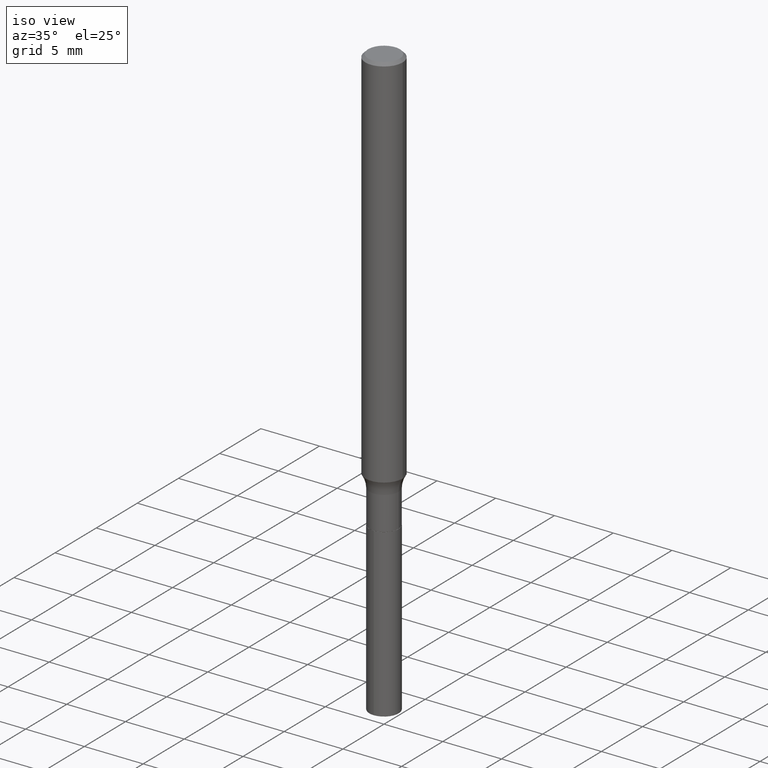
[diagram: clean part render]
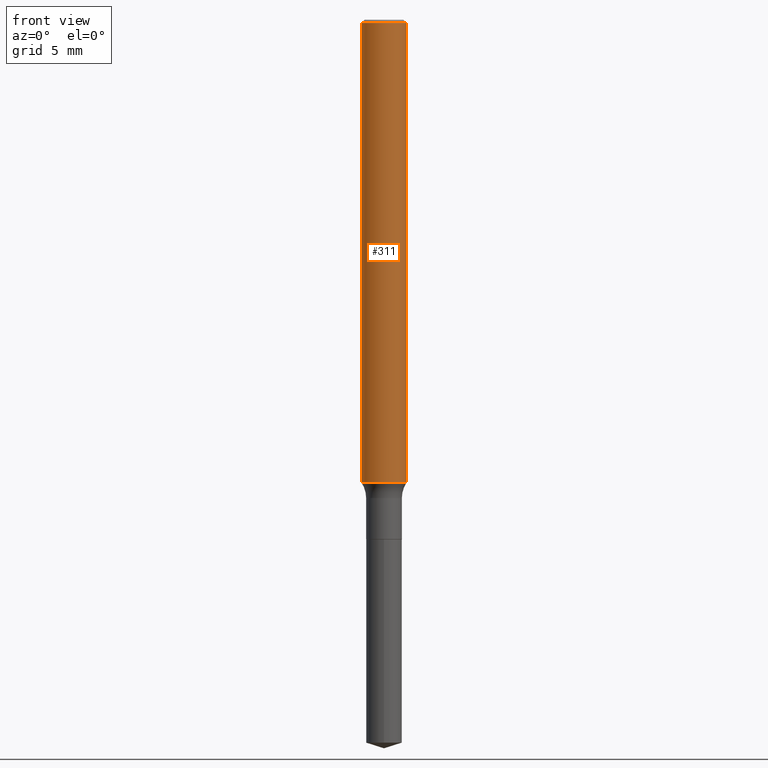
[diagram: tour spotlight — one face highlighted and labeled with its STEP entity id]
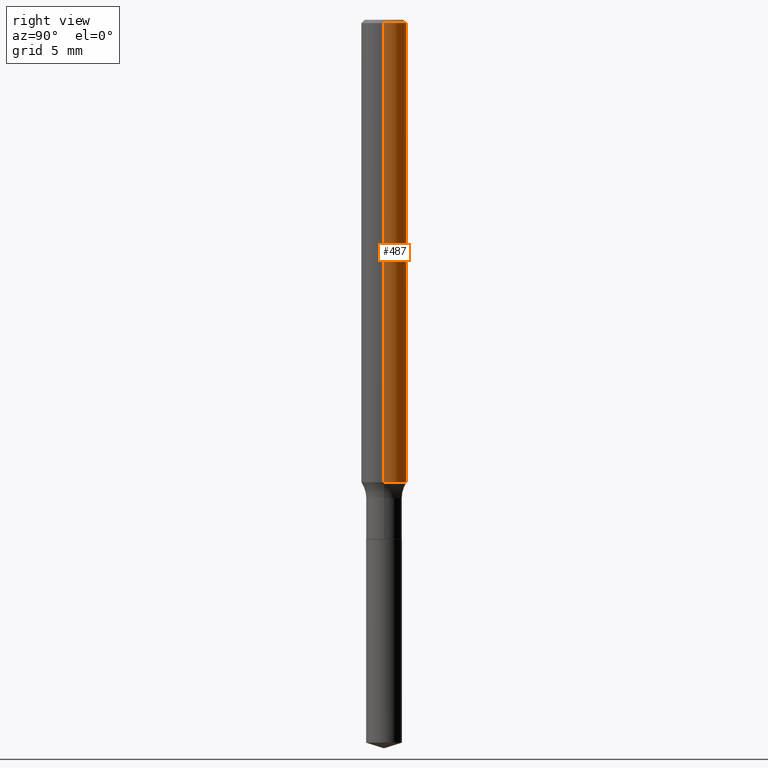
[diagram: tour spotlight — one face highlighted and labeled with its STEP entity id]
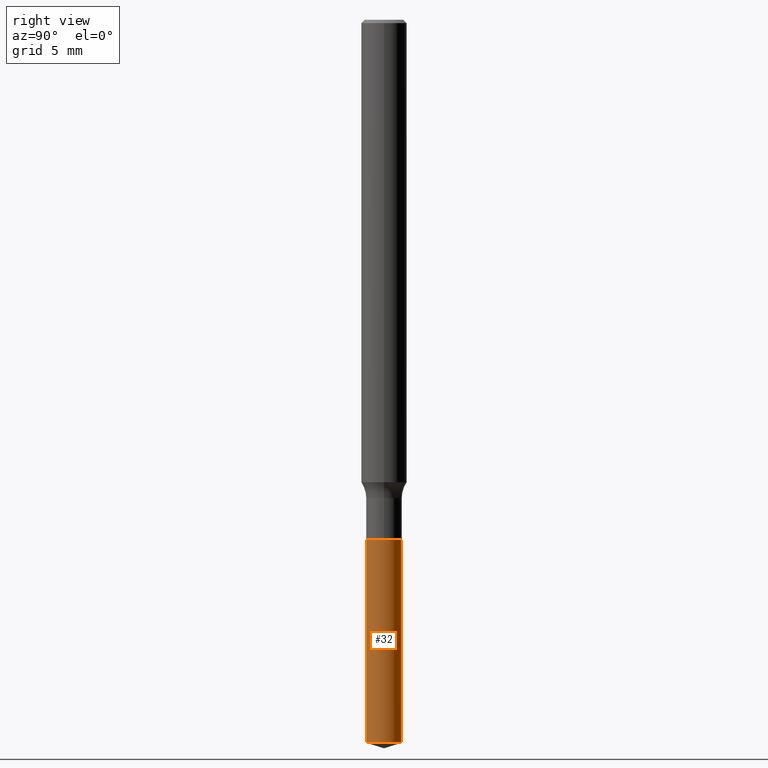
[diagram: tour spotlight — one face highlighted and labeled with its STEP entity id]
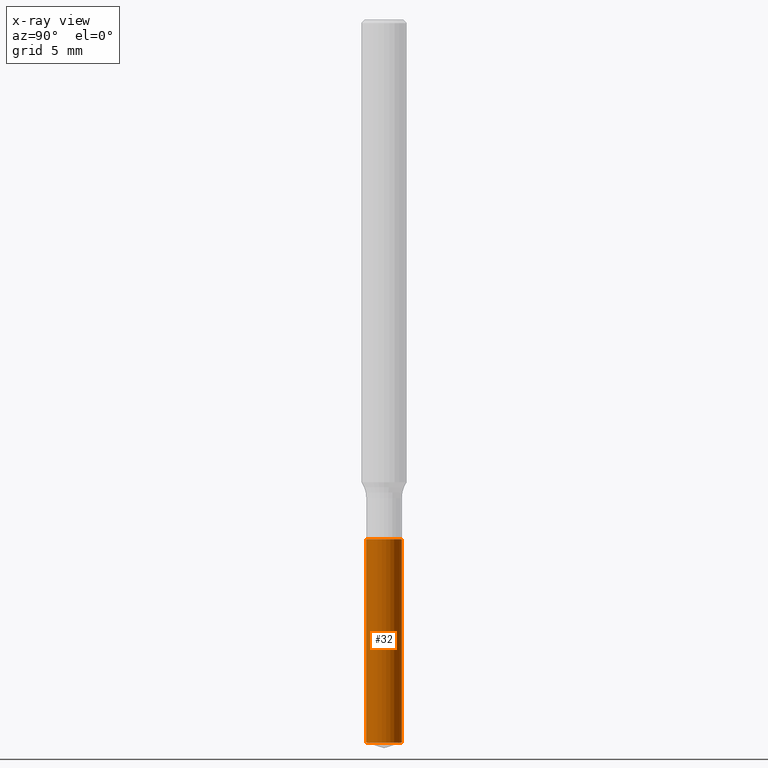
[diagram: x-ray of the same camera — body ghosted, this tour face saturated]
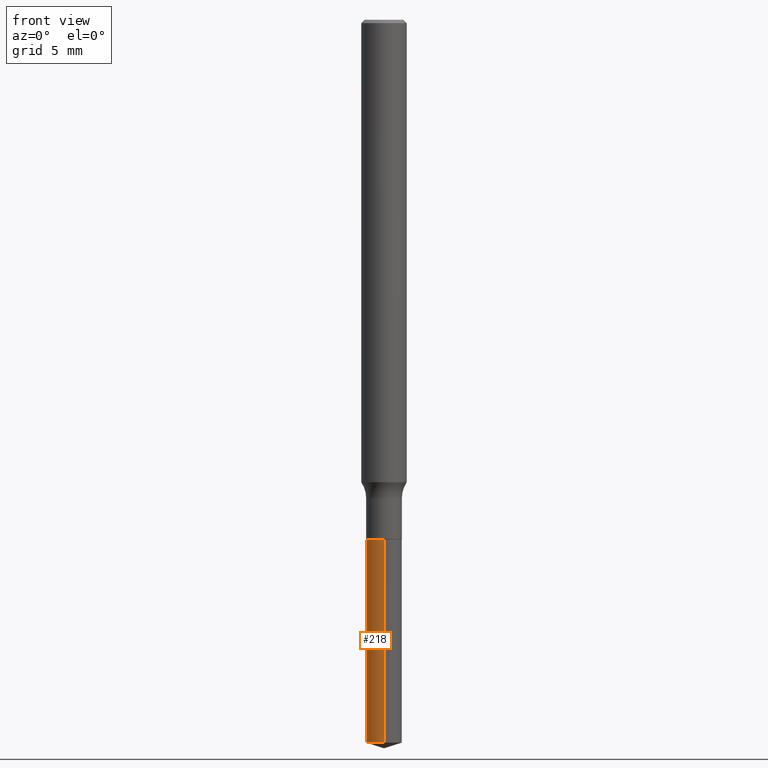
[diagram: tour spotlight — one face highlighted and labeled with its STEP entity id]
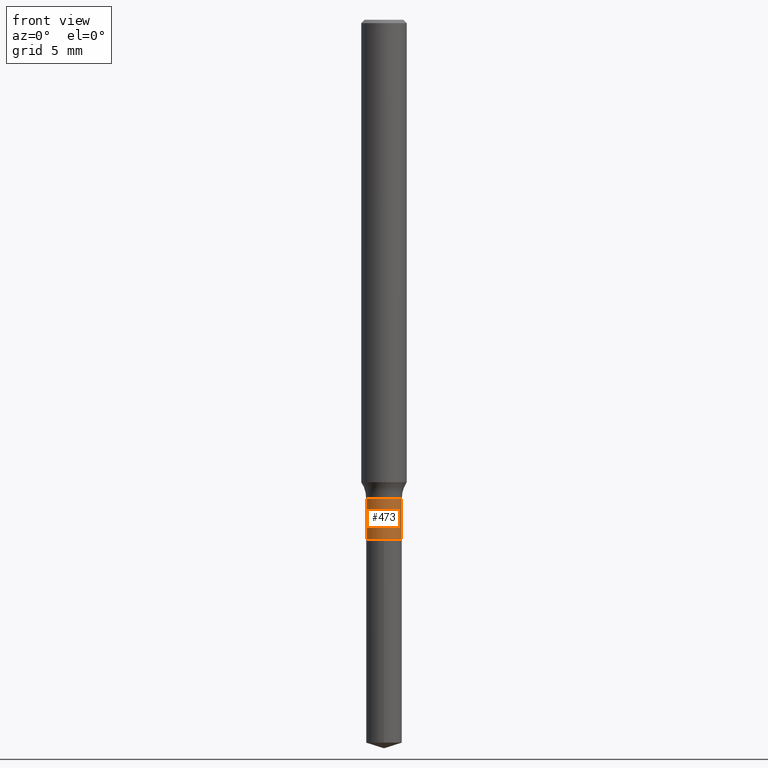
[diagram: tour spotlight — one face highlighted and labeled with its STEP entity id]
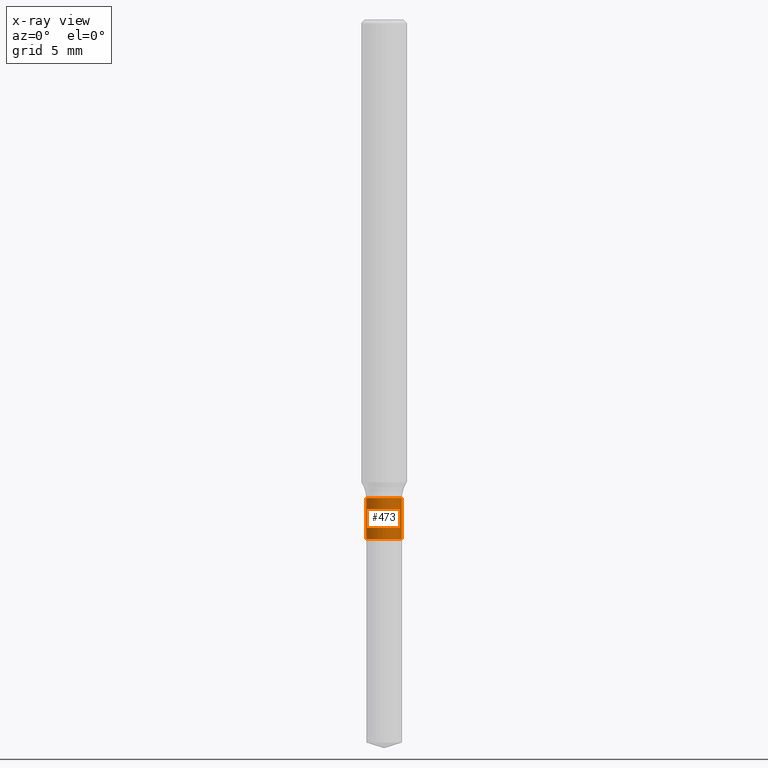
[diagram: x-ray of the same camera — body ghosted, this tour face saturated]
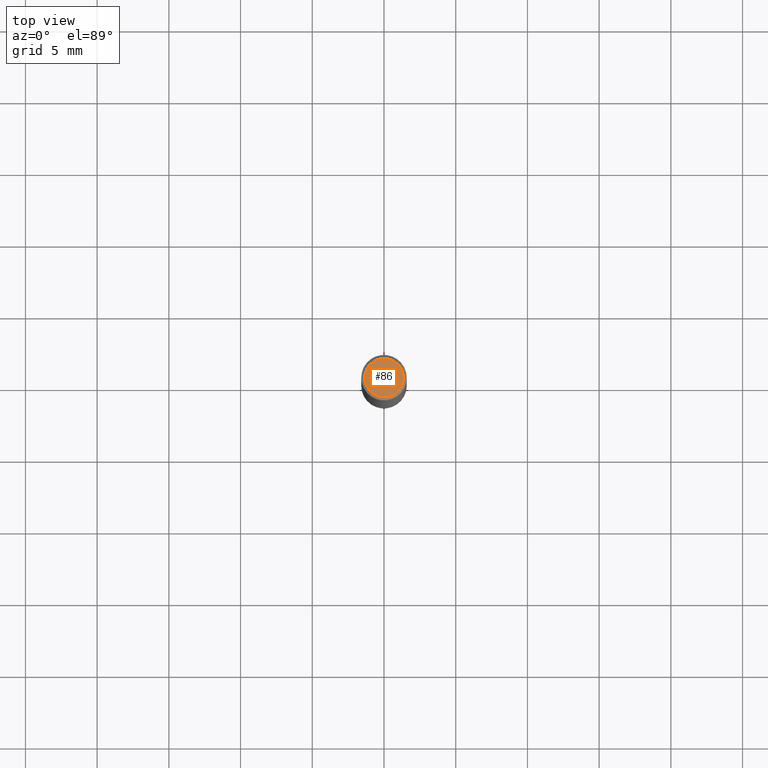
[diagram: tour spotlight — one face highlighted and labeled with its STEP entity id]
A machine part: a face-by-face anatomy tour. The part has 17 B-rep faces; the first image is the clean iso view, then the 6 largest visible faces are spotlighted one at a time (largest first), each with its STEP entity span.

Face 1 — front view, entity #311. In plain terms, the highlighted cylindrical surface (edge-blend (fillet) strip) has radius 1.5875 mm, axis along (-0, 0, 1).
Definition (entity closure, byte-faithful):
#24 = AXIS2_PLACEMENT_3D ( 'NONE', #390, #319, #46 ) ;
#35 = FACE_OUTER_BOUND ( 'NONE', #486, .T. ) ;
#43 = LINE ( 'NONE', #345, #479 ) ;
#45 = EDGE_CURVE ( 'NONE', #104, #130, #340, .T. ) ;
#46 = DIRECTION ( 'NONE',  ( 1.000000000000000000, -6.982962677686266711E-15, 0.000000000000000000 ) ) ;
#67 = CYLINDRICAL_SURFACE ( 'NONE', #270, 0.06250000000000008327 ) ;
#104 = VERTEX_POINT ( 'NONE', #338 ) ;
#116 = DIRECTION ( 'NONE',  ( -2.445468806185136877E-29, 3.491481338843145188E-15, 1.000000000000000000 ) ) ;
#118 = ORIENTED_EDGE ( 'NONE', *, *, #182, .T. ) ;
#119 = CARTESIAN_POINT ( 'NONE',  ( 0.06250000000000008327, -4.364351673553922611E-16, 3.047610484872464074E-30 ) ) ;
#120 = VERTEX_POINT ( 'NONE', #258 ) ;
#130 = VERTEX_POINT ( 'NONE', #228 ) ;
#136 = VECTOR ( 'NONE', #357, 39.37007874015748143 ) ;
#157 = LINE ( 'NONE', #119, #136 ) ;
#165 = CIRCLE ( 'NONE', #24, 0.06250000000000000000 ) ;
#167 = EDGE_CURVE ( 'NONE', #396, #120, #165, .T. ) ;
#182 = EDGE_CURVE ( 'NONE', #130, #120, #157, .T. ) ;
#214 = DIRECTION ( 'NONE',  ( 1.000000000000000000, -6.982962677686266711E-15, 4.876176775795935793E-29 ) ) ;
#228 = CARTESIAN_POINT ( 'NONE',  ( 0.06250000000000013878, -4.869008380233988081E-15, -1.269539425448359404 ) ) ;
#246 = EDGE_CURVE ( 'NONE', #104, #396, #43, .T. ) ;
#249 = CARTESIAN_POINT ( 'NONE',  ( 3.104619063156163853E-29, -4.432573212878595623E-15, -1.269539425448359404 ) ) ;
#253 = CARTESIAN_POINT ( 'NONE',  ( -0.06250000000000000000, -1.788563715365060904E-15, -0.009375000000000063838 ) ) ;
#258 = CARTESIAN_POINT ( 'NONE',  ( 0.06250000000000000000, -4.691678049070463404E-16, -0.009375000000000063838 ) ) ;
#270 = AXIS2_PLACEMENT_3D ( 'NONE', #490, #449, #214 ) ;
#289 = DIRECTION ( 'NONE',  ( -2.445468806185136597E-29, 3.491481338843145583E-15, 1.000000000000000000 ) ) ;
#311 = ADVANCED_FACE ( 'NONE', ( #35 ), #67, .T. ) ;
#319 = DIRECTION ( 'NONE',  ( -2.445468806185136597E-29, 3.491481338843145583E-15, 1.000000000000000000 ) ) ;
#322 = AXIS2_PLACEMENT_3D ( 'NONE', #249, #289, #367 ) ;
#329 = ORIENTED_EDGE ( 'NONE', *, *, #167, .F. ) ;
#338 = CARTESIAN_POINT ( 'NONE',  ( -0.06250000000000013878, -3.988484003028533007E-15, -1.269539425448359404 ) ) ;
#340 = CIRCLE ( 'NONE', #322, 0.06250000000000016653 ) ;
#345 = CARTESIAN_POINT ( 'NONE',  ( -0.06250000000000008327, 4.440892098500632078E-16, -3.074334431409319967E-30 ) ) ;
#347 = ORIENTED_EDGE ( 'NONE', *, *, #246, .F. ) ;
#350 = ORIENTED_EDGE ( 'NONE', *, *, #45, .T. ) ;
#357 = DIRECTION ( 'NONE',  ( -2.445468806185136877E-29, 3.491481338843145188E-15, 1.000000000000000000 ) ) ;
#367 = DIRECTION ( 'NONE',  ( 1.000000000000000000, -6.982962677686259611E-15, 0.000000000000000000 ) ) ;
#390 = CARTESIAN_POINT ( 'NONE',  ( 2.292627005798581061E-31, -3.273263755165471417E-17, -0.009375000000000063838 ) ) ;
#396 = VERTEX_POINT ( 'NONE', #253 ) ;
#449 = DIRECTION ( 'NONE',  ( -2.445468806185136597E-29, 3.491481338843145583E-15, 1.000000000000000000 ) ) ;
#479 = VECTOR ( 'NONE', #116, 39.37007874015748143 ) ;
#486 = EDGE_LOOP ( 'NONE', ( #347, #350, #118, #329 ) ) ;
#490 = CARTESIAN_POINT ( 'NONE',  ( 0.000000000000000000, 0.000000000000000000, 0.000000000000000000 ) ) ;

Face 2 — right view, entity #487. In plain terms, the highlighted cylindrical surface (edge-blend (fillet) strip) has radius 1.5875 mm, axis along (-0, 0, 1).
Definition (entity closure, byte-faithful):
#2 = CYLINDRICAL_SURFACE ( 'NONE', #377, 0.06250000000000008327 ) ;
#43 = LINE ( 'NONE', #345, #479 ) ;
#52 = CIRCLE ( 'NONE', #155, 0.06250000000000000000 ) ;
#58 = CIRCLE ( 'NONE', #191, 0.06250000000000016653 ) ;
#75 = FACE_OUTER_BOUND ( 'NONE', #442, .T. ) ;
#77 = DIRECTION ( 'NONE',  ( 1.000000000000000000, -6.982962677686266711E-15, 4.876176775795935793E-29 ) ) ;
#101 = ORIENTED_EDGE ( 'NONE', *, *, #342, .T. ) ;
#104 = VERTEX_POINT ( 'NONE', #338 ) ;
#116 = DIRECTION ( 'NONE',  ( -2.445468806185136877E-29, 3.491481338843145188E-15, 1.000000000000000000 ) ) ;
#119 = CARTESIAN_POINT ( 'NONE',  ( 0.06250000000000008327, -4.364351673553922611E-16, 3.047610484872464074E-30 ) ) ;
#120 = VERTEX_POINT ( 'NONE', #258 ) ;
#130 = VERTEX_POINT ( 'NONE', #228 ) ;
#136 = VECTOR ( 'NONE', #357, 39.37007874015748143 ) ;
#140 = DIRECTION ( 'NONE',  ( 1.000000000000000000, -6.982962677686259611E-15, 0.000000000000000000 ) ) ;
#146 = CARTESIAN_POINT ( 'NONE',  ( 0.000000000000000000, 0.000000000000000000, 0.000000000000000000 ) ) ;
#155 = AXIS2_PLACEMENT_3D ( 'NONE', #212, #455, #412 ) ;
#157 = LINE ( 'NONE', #119, #136 ) ;
#164 = ORIENTED_EDGE ( 'NONE', *, *, #302, .F. ) ;
#182 = EDGE_CURVE ( 'NONE', #130, #120, #157, .T. ) ;
#191 = AXIS2_PLACEMENT_3D ( 'NONE', #336, #483, #140 ) ;
#212 = CARTESIAN_POINT ( 'NONE',  ( 2.292627005798581061E-31, -3.273263755165471417E-17, -0.009375000000000063838 ) ) ;
#228 = CARTESIAN_POINT ( 'NONE',  ( 0.06250000000000013878, -4.869008380233988081E-15, -1.269539425448359404 ) ) ;
#246 = EDGE_CURVE ( 'NONE', #104, #396, #43, .T. ) ;
#253 = CARTESIAN_POINT ( 'NONE',  ( -0.06250000000000000000, -1.788563715365060904E-15, -0.009375000000000063838 ) ) ;
#258 = CARTESIAN_POINT ( 'NONE',  ( 0.06250000000000000000, -4.691678049070463404E-16, -0.009375000000000063838 ) ) ;
#265 = DIRECTION ( 'NONE',  ( -2.445468806185136597E-29, 3.491481338843145583E-15, 1.000000000000000000 ) ) ;
#302 = EDGE_CURVE ( 'NONE', #120, #396, #52, .T. ) ;
#336 = CARTESIAN_POINT ( 'NONE',  ( 3.104619063156163853E-29, -4.432573212878595623E-15, -1.269539425448359404 ) ) ;
#338 = CARTESIAN_POINT ( 'NONE',  ( -0.06250000000000013878, -3.988484003028533007E-15, -1.269539425448359404 ) ) ;
#342 = EDGE_CURVE ( 'NONE', #130, #104, #58, .T. ) ;
#345 = CARTESIAN_POINT ( 'NONE',  ( -0.06250000000000008327, 4.440892098500632078E-16, -3.074334431409319967E-30 ) ) ;
#357 = DIRECTION ( 'NONE',  ( -2.445468806185136877E-29, 3.491481338843145188E-15, 1.000000000000000000 ) ) ;
#377 = AXIS2_PLACEMENT_3D ( 'NONE', #146, #265, #77 ) ;
#396 = VERTEX_POINT ( 'NONE', #253 ) ;
#412 = DIRECTION ( 'NONE',  ( 1.000000000000000000, -6.982962677686266711E-15, 0.000000000000000000 ) ) ;
#427 = ORIENTED_EDGE ( 'NONE', *, *, #182, .F. ) ;
#438 = ORIENTED_EDGE ( 'NONE', *, *, #246, .T. ) ;
#442 = EDGE_LOOP ( 'NONE', ( #101, #438, #164, #427 ) ) ;
#455 = DIRECTION ( 'NONE',  ( -2.445468806185136597E-29, 3.491481338843145583E-15, 1.000000000000000000 ) ) ;
#479 = VECTOR ( 'NONE', #116, 39.37007874015748143 ) ;
#483 = DIRECTION ( 'NONE',  ( -2.445468806185136597E-29, 3.491481338843145583E-15, 1.000000000000000000 ) ) ;
#487 = ADVANCED_FACE ( 'NONE', ( #75 ), #2, .T. ) ;

Face 3 — right view, entity #32. An x-ray twin of the same camera follows (body ghosted, this face saturated) — the face is partly hidden behind the body. In plain terms, the highlighted cylindrical surface (edge-blend (fillet) strip) has radius 1.2446 mm, axis along (-0, 0, 1).
Definition (entity closure, byte-faithful):
#1 = DIRECTION ( 'NONE',  ( -2.445105695917542443E-29, 3.492001333413293557E-15, 1.000000000000000000 ) ) ;
#3 = LINE ( 'NONE', #275, #361 ) ;
#8 = ORIENTED_EDGE ( 'NONE', *, *, #301, .T. ) ;
#32 = ADVANCED_FACE ( 'NONE', ( #132 ), #61, .T. ) ;
#40 = CARTESIAN_POINT ( 'NONE',  ( 3.481659405224839130E-16, 0.04899999999999502670, -1.426100000000000145 ) ) ;
#61 = CYLINDRICAL_SURFACE ( 'NONE', #64, 0.04900000000000000189 ) ;
#64 = AXIS2_PLACEMENT_3D ( 'NONE', #444, #244, #405 ) ;
#70 = CARTESIAN_POINT ( 'NONE',  ( -3.421651712065921676E-16, -0.04900000000000497707, -1.426099999999999479 ) ) ;
#73 = DIRECTION ( 'NONE',  ( -2.445105695917542443E-29, 3.492001333413293557E-15, 1.000000000000000000 ) ) ;
#88 = EDGE_CURVE ( 'NONE', #124, #135, #341, .T. ) ;
#91 = CIRCLE ( 'NONE', #227, 0.04900000000000000189 ) ;
#124 = VERTEX_POINT ( 'NONE', #411 ) ;
#132 = FACE_OUTER_BOUND ( 'NONE', #151, .T. ) ;
#135 = VERTEX_POINT ( 'NONE', #465 ) ;
#137 = VERTEX_POINT ( 'NONE', #192 ) ;
#139 = ORIENTED_EDGE ( 'NONE', *, *, #88, .T. ) ;
#143 = VECTOR ( 'NONE', #1, 39.37007874015748143 ) ;
#151 = EDGE_LOOP ( 'NONE', ( #139, #8, #169, #470 ) ) ;
#169 = ORIENTED_EDGE ( 'NONE', *, *, #186, .F. ) ;
#186 = EDGE_CURVE ( 'NONE', #316, #137, #91, .T. ) ;
#190 = DIRECTION ( 'NONE',  ( -6.982962677686265922E-15, -1.000000000000000000, 5.575199987069924823E-15 ) ) ;
#192 = CARTESIAN_POINT ( 'NONE',  ( 3.481659405224976194E-16, 0.04899999999999501282, -1.426100000000000145 ) ) ;
#227 = AXIS2_PLACEMENT_3D ( 'NONE', #307, #353, #190 ) ;
#244 = DIRECTION ( 'NONE',  ( -2.445105695917542443E-29, 3.492001333413293557E-15, 1.000000000000000000 ) ) ;
#259 = EDGE_CURVE ( 'NONE', #124, #316, #3, .T. ) ;
#271 = DIRECTION ( 'NONE',  ( -2.445105695917542443E-29, 3.492001333413293557E-15, 1.000000000000000000 ) ) ;
#275 = CARTESIAN_POINT ( 'NONE',  ( -3.421651712065921676E-16, -0.04900000000000497707, -1.426099999999999479 ) ) ;
#281 = LINE ( 'NONE', #40, #143 ) ;
#299 = CARTESIAN_POINT ( 'NONE',  ( 4.852953219022108829E-29, -6.929310936801836809E-15, -1.984550359344929626 ) ) ;
#301 = EDGE_CURVE ( 'NONE', #135, #137, #281, .T. ) ;
#307 = CARTESIAN_POINT ( 'NONE',  ( 3.487483064500622693E-29, -4.979201537324209694E-15, -1.426099999999999923 ) ) ;
#316 = VERTEX_POINT ( 'NONE', #70 ) ;
#324 = AXIS2_PLACEMENT_3D ( 'NONE', #299, #73, #378 ) ;
#341 = CIRCLE ( 'NONE', #324, 0.04900000000000000189 ) ;
#353 = DIRECTION ( 'NONE',  ( -2.445105695917542443E-29, 3.492001333413293557E-15, 1.000000000000000000 ) ) ;
#361 = VECTOR ( 'NONE', #271, 39.37007874015748143 ) ;
#378 = DIRECTION ( 'NONE',  ( -6.982962677686265922E-15, -1.000000000000000000, 5.575199987069924823E-15 ) ) ;
#405 = DIRECTION ( 'NONE',  ( -6.982962677686265922E-15, -1.000000000000000000, 5.575199987069924823E-15 ) ) ;
#411 = CARTESIAN_POINT ( 'NONE',  ( -3.421651712065784612E-16, -0.04900000000000692690, -1.984550359344929404 ) ) ;
#444 = CARTESIAN_POINT ( 'NONE',  ( 3.487483064500622693E-29, -4.979201537324209694E-15, -1.426099999999999923 ) ) ;
#465 = CARTESIAN_POINT ( 'NONE',  ( 3.481659405224975208E-16, 0.04899999999999306299, -1.984550359344930071 ) ) ;
#470 = ORIENTED_EDGE ( 'NONE', *, *, #259, .F. ) ;

Face 4 — front view, entity #218. In plain terms, the highlighted cylindrical surface (edge-blend (fillet) strip) has radius 1.2446 mm, axis along (-0, 0, 1).
Definition (entity closure, byte-faithful):
#1 = DIRECTION ( 'NONE',  ( -2.445105695917542443E-29, 3.492001333413293557E-15, 1.000000000000000000 ) ) ;
#3 = LINE ( 'NONE', #275, #361 ) ;
#27 = DIRECTION ( 'NONE',  ( -6.982962677686265922E-15, -1.000000000000000000, 5.575199987069924823E-15 ) ) ;
#34 = CIRCLE ( 'NONE', #245, 0.04900000000000000189 ) ;
#40 = CARTESIAN_POINT ( 'NONE',  ( 3.481659405224839130E-16, 0.04899999999999502670, -1.426100000000000145 ) ) ;
#49 = DIRECTION ( 'NONE',  ( -6.982962677686265922E-15, -1.000000000000000000, 5.575199987069924823E-15 ) ) ;
#53 = DIRECTION ( 'NONE',  ( -6.982962677686265922E-15, -1.000000000000000000, 5.575199987069924823E-15 ) ) ;
#66 = ORIENTED_EDGE ( 'NONE', *, *, #259, .T. ) ;
#69 = CARTESIAN_POINT ( 'NONE',  ( 4.852953219022108829E-29, -6.929310936801836809E-15, -1.984550359344929626 ) ) ;
#70 = CARTESIAN_POINT ( 'NONE',  ( -3.421651712065921676E-16, -0.04900000000000497707, -1.426099999999999479 ) ) ;
#80 = EDGE_CURVE ( 'NONE', #135, #124, #408, .T. ) ;
#97 = AXIS2_PLACEMENT_3D ( 'NONE', #469, #467, #49 ) ;
#123 = DIRECTION ( 'NONE',  ( -2.445105695917542443E-29, 3.492001333413293557E-15, 1.000000000000000000 ) ) ;
#124 = VERTEX_POINT ( 'NONE', #411 ) ;
#135 = VERTEX_POINT ( 'NONE', #465 ) ;
#137 = VERTEX_POINT ( 'NONE', #192 ) ;
#143 = VECTOR ( 'NONE', #1, 39.37007874015748143 ) ;
#152 = FACE_OUTER_BOUND ( 'NONE', #474, .T. ) ;
#175 = AXIS2_PLACEMENT_3D ( 'NONE', #69, #260, #27 ) ;
#187 = EDGE_CURVE ( 'NONE', #137, #316, #34, .T. ) ;
#192 = CARTESIAN_POINT ( 'NONE',  ( 3.481659405224976194E-16, 0.04899999999999501282, -1.426100000000000145 ) ) ;
#218 = ADVANCED_FACE ( 'NONE', ( #152 ), #225, .T. ) ;
#225 = CYLINDRICAL_SURFACE ( 'NONE', #97, 0.04900000000000000189 ) ;
#235 = CARTESIAN_POINT ( 'NONE',  ( 3.487483064500622693E-29, -4.979201537324209694E-15, -1.426099999999999923 ) ) ;
#245 = AXIS2_PLACEMENT_3D ( 'NONE', #235, #123, #53 ) ;
#259 = EDGE_CURVE ( 'NONE', #124, #316, #3, .T. ) ;
#260 = DIRECTION ( 'NONE',  ( -2.445105695917542443E-29, 3.492001333413293557E-15, 1.000000000000000000 ) ) ;
#271 = DIRECTION ( 'NONE',  ( -2.445105695917542443E-29, 3.492001333413293557E-15, 1.000000000000000000 ) ) ;
#275 = CARTESIAN_POINT ( 'NONE',  ( -3.421651712065921676E-16, -0.04900000000000497707, -1.426099999999999479 ) ) ;
#279 = ORIENTED_EDGE ( 'NONE', *, *, #301, .F. ) ;
#281 = LINE ( 'NONE', #40, #143 ) ;
#283 = ORIENTED_EDGE ( 'NONE', *, *, #80, .T. ) ;
#301 = EDGE_CURVE ( 'NONE', #135, #137, #281, .T. ) ;
#316 = VERTEX_POINT ( 'NONE', #70 ) ;
#361 = VECTOR ( 'NONE', #271, 39.37007874015748143 ) ;
#408 = CIRCLE ( 'NONE', #175, 0.04900000000000000189 ) ;
#411 = CARTESIAN_POINT ( 'NONE',  ( -3.421651712065784612E-16, -0.04900000000000692690, -1.984550359344929404 ) ) ;
#432 = ORIENTED_EDGE ( 'NONE', *, *, #187, .F. ) ;
#465 = CARTESIAN_POINT ( 'NONE',  ( 3.481659405224975208E-16, 0.04899999999999306299, -1.984550359344930071 ) ) ;
#467 = DIRECTION ( 'NONE',  ( -2.445105695917542443E-29, 3.492001333413293557E-15, 1.000000000000000000 ) ) ;
#469 = CARTESIAN_POINT ( 'NONE',  ( 3.487483064500622693E-29, -4.979201537324209694E-15, -1.426099999999999923 ) ) ;
#474 = EDGE_LOOP ( 'NONE', ( #279, #283, #66, #432 ) ) ;

Face 5 — front view, entity #473. An x-ray twin of the same camera follows (body ghosted, this face saturated) — the face is partly hidden behind the body. In plain terms, the highlighted cylindrical surface (edge-blend (fillet) strip) has radius 1.2446 mm, axis along (-0, 0, 1).
Definition (entity closure, byte-faithful):
#13 = ORIENTED_EDGE ( 'NONE', *, *, #114, .F. ) ;
#22 = ORIENTED_EDGE ( 'NONE', *, *, #38, .T. ) ;
#30 = DIRECTION ( 'NONE',  ( -2.445468806185136597E-29, 3.491481338843145583E-15, 1.000000000000000000 ) ) ;
#38 = EDGE_CURVE ( 'NONE', #478, #437, #211, .T. ) ;
#39 = DIRECTION ( 'NONE',  ( -2.445468806185136597E-29, 3.491481338843145583E-15, 1.000000000000000000 ) ) ;
#47 = ORIENTED_EDGE ( 'NONE', *, *, #122, .F. ) ;
#72 = AXIS2_PLACEMENT_3D ( 'NONE', #372, #30, #180 ) ;
#81 = CARTESIAN_POINT ( 'NONE',  ( -0.04899999999999999495, -4.433417753023238990E-15, -1.425599999999999978 ) ) ;
#89 = DIRECTION ( 'NONE',  ( -2.445468806185136597E-29, 3.491481338843145583E-15, 1.000000000000000000 ) ) ;
#103 = DIRECTION ( 'NONE',  ( -2.445468806185136877E-29, 3.491481338843145188E-15, 1.000000000000000000 ) ) ;
#106 = VECTOR ( 'NONE', #485, 39.37007874015748143 ) ;
#114 = EDGE_CURVE ( 'NONE', #251, #217, #223, .T. ) ;
#122 = EDGE_CURVE ( 'NONE', #217, #437, #384, .T. ) ;
#127 = DIRECTION ( 'NONE',  ( 1.000000000000000000, -6.982962677686274599E-15, 0.000000000000000000 ) ) ;
#180 = DIRECTION ( 'NONE',  ( 1.000000000000000000, -6.982962677686276966E-15, 0.000000000000000000 ) ) ;
#211 = LINE ( 'NONE', #213, #280 ) ;
#213 = CARTESIAN_POINT ( 'NONE',  ( 0.04899999999999999495, -3.421651712066270254E-16, 2.389326620140008090E-30 ) ) ;
#217 = VERTEX_POINT ( 'NONE', #388 ) ;
#223 = LINE ( 'NONE', #380, #106 ) ;
#224 = CYLINDRICAL_SURFACE ( 'NONE', #434, 0.04899999999999999495 ) ;
#251 = VERTEX_POINT ( 'NONE', #81 ) ;
#261 = CIRCLE ( 'NONE', #439, 0.04899999999999999495 ) ;
#280 = VECTOR ( 'NONE', #103, 39.37007874015748143 ) ;
#287 = EDGE_CURVE ( 'NONE', #251, #478, #261, .T. ) ;
#305 = CARTESIAN_POINT ( 'NONE',  ( 0.04899999999999999495, -5.319620967861416301E-15, -1.425599999999999978 ) ) ;
#349 = FACE_OUTER_BOUND ( 'NONE', #436, .T. ) ;
#371 = ORIENTED_EDGE ( 'NONE', *, *, #287, .T. ) ;
#372 = CARTESIAN_POINT ( 'NONE',  ( 3.211878730043558041E-29, -4.585711590436587801E-15, -1.313399999999999901 ) ) ;
#380 = CARTESIAN_POINT ( 'NONE',  ( -0.04899999999999999495, 3.481659405224490552E-16, -2.410278194224903530E-30 ) ) ;
#381 = CARTESIAN_POINT ( 'NONE',  ( 0.04899999999999998107, -4.927876761643215123E-15, -1.313399999999999901 ) ) ;
#384 = CIRCLE ( 'NONE', #72, 0.04899999999999998107 ) ;
#388 = CARTESIAN_POINT ( 'NONE',  ( -0.04899999999999998107, -4.433417753023238990E-15, -1.313399999999999901 ) ) ;
#421 = DIRECTION ( 'NONE',  ( 1.000000000000000000, -6.982962677686266711E-15, 4.876176775795935232E-29 ) ) ;
#426 = CARTESIAN_POINT ( 'NONE',  ( 0.000000000000000000, 0.000000000000000000, 0.000000000000000000 ) ) ;
#431 = CARTESIAN_POINT ( 'NONE',  ( 3.486260330097531012E-29, -4.977455796654788190E-15, -1.425599999999999978 ) ) ;
#434 = AXIS2_PLACEMENT_3D ( 'NONE', #426, #39, #421 ) ;
#436 = EDGE_LOOP ( 'NONE', ( #13, #371, #22, #47 ) ) ;
#437 = VERTEX_POINT ( 'NONE', #381 ) ;
#439 = AXIS2_PLACEMENT_3D ( 'NONE', #431, #89, #127 ) ;
#473 = ADVANCED_FACE ( 'NONE', ( #349 ), #224, .T. ) ;
#478 = VERTEX_POINT ( 'NONE', #305 ) ;
#485 = DIRECTION ( 'NONE',  ( -2.445468806185136877E-29, 3.491481338843145188E-15, 1.000000000000000000 ) ) ;

Face 6 — top view, entity #86. In plain terms, the highlighted planar face has unit normal (0, -0, -1).
Definition (entity closure, byte-faithful):
#11 = ORIENTED_EDGE ( 'NONE', *, *, #59, .T. ) ;
#33 = DIRECTION ( 'NONE',  ( 2.438088387897960049E-29, -3.491481338843145188E-15, -1.000000000000000000 ) ) ;
#59 = EDGE_CURVE ( 'NONE', #170, #327, #383, .T. ) ;
#86 = ADVANCED_FACE ( 'NONE', ( #456 ), #148, .F. ) ;
#112 = DIRECTION ( 'NONE',  ( -1.000000000000000000, 6.982962677686265922E-15, -4.876176775795935793E-29 ) ) ;
#144 = CARTESIAN_POINT ( 'NONE',  ( 9.546038302585977863E-46, -1.362921273379660165E-31, -3.903561672282188024E-17 ) ) ;
#145 = DIRECTION ( 'NONE',  ( 1.000000000000000000, -6.982962677686266711E-15, 4.881282378734115390E-29 ) ) ;
#148 = PLANE ( 'NONE',  #205 ) ;
#170 = VERTEX_POINT ( 'NONE', #231 ) ;
#172 = CARTESIAN_POINT ( 'NONE',  ( 0.05312499999999999861, -4.129888592719940335E-16, -3.903561672281913772E-17 ) ) ;
#205 = AXIS2_PLACEMENT_3D ( 'NONE', #266, #33, #112 ) ;
#231 = CARTESIAN_POINT ( 'NONE',  ( -0.05312499999999999861, 3.873362110279099094E-16, -3.903561672282453649E-17 ) ) ;
#243 = ORIENTED_EDGE ( 'NONE', *, *, #374, .T. ) ;
#257 = DIRECTION ( 'NONE',  ( -2.445468806185136597E-29, 3.491481338843145583E-15, 1.000000000000000000 ) ) ;
#266 = CARTESIAN_POINT ( 'NONE',  ( 4.773019151292988932E-46, -6.814606366898300824E-32, -1.951780836141094012E-17 ) ) ;
#284 = CIRCLE ( 'NONE', #464, 0.05312499999999999861 ) ;
#298 = AXIS2_PLACEMENT_3D ( 'NONE', #331, #482, #145 ) ;
#312 = EDGE_LOOP ( 'NONE', ( #11, #243 ) ) ;
#327 = VERTEX_POINT ( 'NONE', #172 ) ;
#331 = CARTESIAN_POINT ( 'NONE',  ( 9.546038302585977863E-46, -1.362921273379660165E-31, -3.903561672282188024E-17 ) ) ;
#374 = EDGE_CURVE ( 'NONE', #327, #170, #284, .T. ) ;
#383 = CIRCLE ( 'NONE', #298, 0.05312499999999999861 ) ;
#446 = DIRECTION ( 'NONE',  ( 1.000000000000000000, -6.982962677686266711E-15, 4.881282378734115390E-29 ) ) ;
#456 = FACE_OUTER_BOUND ( 'NONE', #312, .T. ) ;
#464 = AXIS2_PLACEMENT_3D ( 'NONE', #144, #257, #446 ) ;
#482 = DIRECTION ( 'NONE',  ( -2.445468806185136597E-29, 3.491481338843145583E-15, 1.000000000000000000 ) ) ;